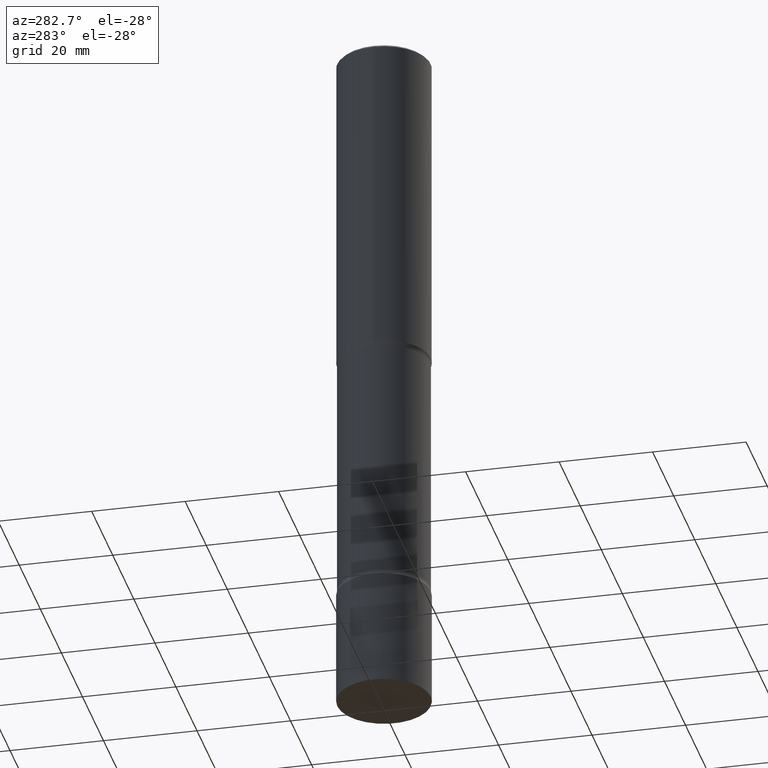
[diagram: clean part render]
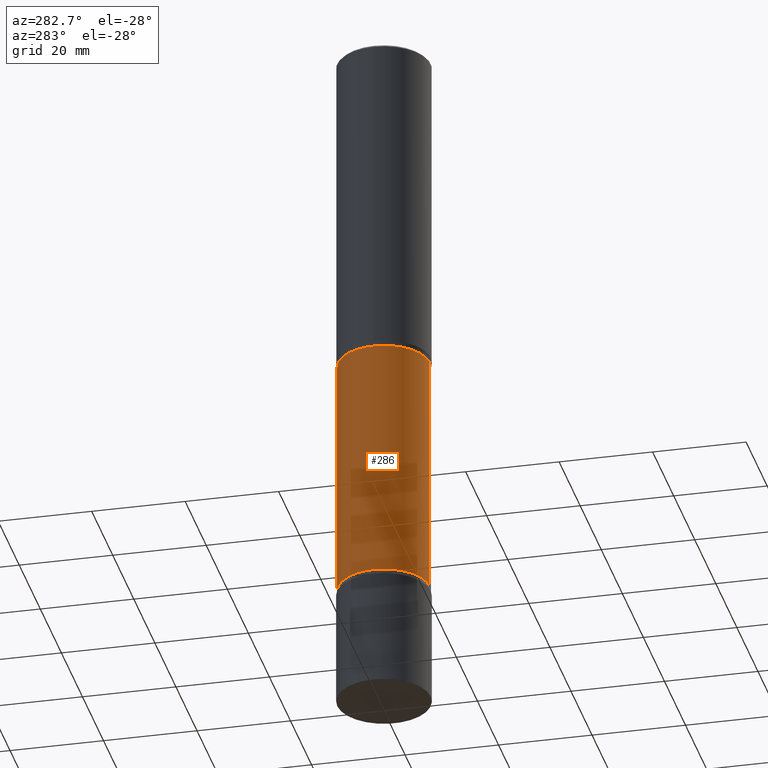
[diagram: same view with one face highlighted and labeled with its STEP entity id]
A machine part, auxiliary view. The second image highlights one B-rep face of the part: STEP entity #286.
In plain terms, the highlighted cylindrical surface (partial cylindrical patch) has radius 9.8095 mm, axis along (0, -0, -1).
Its self-contained STEP definition (entity closure, byte-faithful):
#2 = CARTESIAN_POINT ( 'NONE',  ( 1.191686275506216771E-28, -1.705269145117238333E-14, -4.878553194726920950 ) ) ;
#5 = DIRECTION ( 'NONE',  ( 2.624012579823737835E-29, -3.235796492912163733E-15, -1.000000000000000000 ) ) ;
#8 = CARTESIAN_POINT ( 'NONE',  ( -2.675251194230947803E-15, -0.3862000000000107014, -2.798546805273079308 ) ) ;
#19 = VECTOR ( 'NONE', #438, 39.37007874015748143 ) ;
#52 = CIRCLE ( 'NONE', #427, 0.3862000000000004318 ) ;
#53 = AXIS2_PLACEMENT_3D ( 'NONE', #244, #356, #359 ) ;
#56 = CARTESIAN_POINT ( 'NONE',  ( 2.696820186122502796E-15, 0.3861999999999900512, -2.798546805273081528 ) ) ;
#66 = VERTEX_POINT ( 'NONE', #8 ) ;
#68 = LINE ( 'NONE', #143, #441 ) ;
#103 = EDGE_CURVE ( 'NONE', #66, #266, #440, .T. ) ;
#105 = ORIENTED_EDGE ( 'NONE', *, *, #110, .F. ) ;
#110 = EDGE_CURVE ( 'NONE', #492, #423, #52, .T. ) ;
#143 = CARTESIAN_POINT ( 'NONE',  ( -2.649524326739221477E-15, -0.3862000000000207489, -5.905499999999999972 ) ) ;
#208 = EDGE_CURVE ( 'NONE', #266, #423, #485, .T. ) ;
#244 = CARTESIAN_POINT ( 'NONE',  ( 6.458899823021536649E-29, -1.032221407094275446E-14, -2.798546805273080640 ) ) ;
#251 = CARTESIAN_POINT ( 'NONE',  ( 2.696820186122584443E-15, 0.3861999999999800037, -5.905500000000001748 ) ) ;
#252 = ORIENTED_EDGE ( 'NONE', *, *, #456, .F. ) ;
#259 = ORIENTED_EDGE ( 'NONE', *, *, #208, .T. ) ;
#266 = VERTEX_POINT ( 'NONE', #56 ) ;
#286 = ADVANCED_FACE ( 'NONE', ( #364 ), #407, .T. ) ;
#305 = DIRECTION ( 'NONE',  ( 6.982962677686265922E-15, 1.000000000000000000, -2.829464519590119711E-15 ) ) ;
#310 = CARTESIAN_POINT ( 'NONE',  ( 2.696820186122558016E-15, 0.3861999999999833899, -4.878553194726921838 ) ) ;
#312 = DIRECTION ( 'NONE',  ( 2.624012579823737835E-29, -3.235796492912164127E-15, -1.000000000000000000 ) ) ;
#329 = CARTESIAN_POINT ( 'NONE',  ( 1.461158409090852594E-28, -2.037568232208236419E-14, -5.905500000000000860 ) ) ;
#356 = DIRECTION ( 'NONE',  ( 2.624012579823737835E-29, -3.235796492912163733E-15, -1.000000000000000000 ) ) ;
#359 = DIRECTION ( 'NONE',  ( 6.982962677686265922E-15, 1.000000000000000000, -2.829464519590119711E-15 ) ) ;
#364 = FACE_OUTER_BOUND ( 'NONE', #417, .T. ) ;
#407 = CYLINDRICAL_SURFACE ( 'NONE', #506, 0.3862000000000003763 ) ;
#417 = EDGE_LOOP ( 'NONE', ( #252, #473, #259, #105 ) ) ;
#423 = VERTEX_POINT ( 'NONE', #310 ) ;
#427 = AXIS2_PLACEMENT_3D ( 'NONE', #2, #5, #467 ) ;
#435 = CARTESIAN_POINT ( 'NONE',  ( -2.675251194230890216E-15, -0.3862000000000175293, -4.878553194726920061 ) ) ;
#438 = DIRECTION ( 'NONE',  ( 2.624012579823737835E-29, -3.235796492912164127E-15, -1.000000000000000000 ) ) ;
#440 = CIRCLE ( 'NONE', #53, 0.3862000000000003763 ) ;
#441 = VECTOR ( 'NONE', #312, 39.37007874015748143 ) ;
#456 = EDGE_CURVE ( 'NONE', #66, #492, #68, .T. ) ;
#467 = DIRECTION ( 'NONE',  ( 6.982962677686265922E-15, 1.000000000000000000, -2.829464519590119317E-15 ) ) ;
#473 = ORIENTED_EDGE ( 'NONE', *, *, #103, .T. ) ;
#483 = DIRECTION ( 'NONE',  ( 2.624012579823737835E-29, -3.235796492912163733E-15, -1.000000000000000000 ) ) ;
#485 = LINE ( 'NONE', #251, #19 ) ;
#492 = VERTEX_POINT ( 'NONE', #435 ) ;
#506 = AXIS2_PLACEMENT_3D ( 'NONE', #329, #483, #305 ) ;